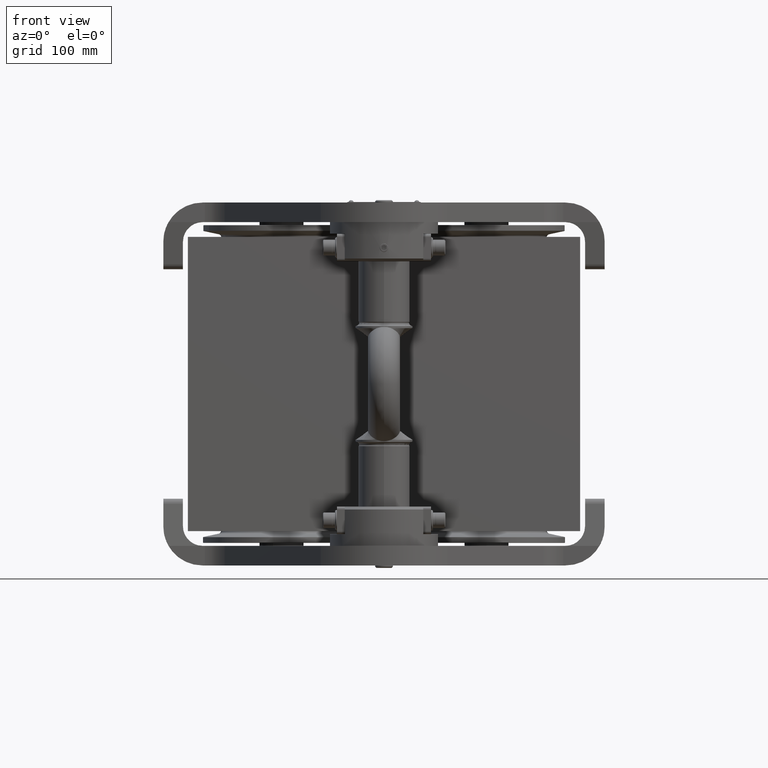
[diagram: clean part render]
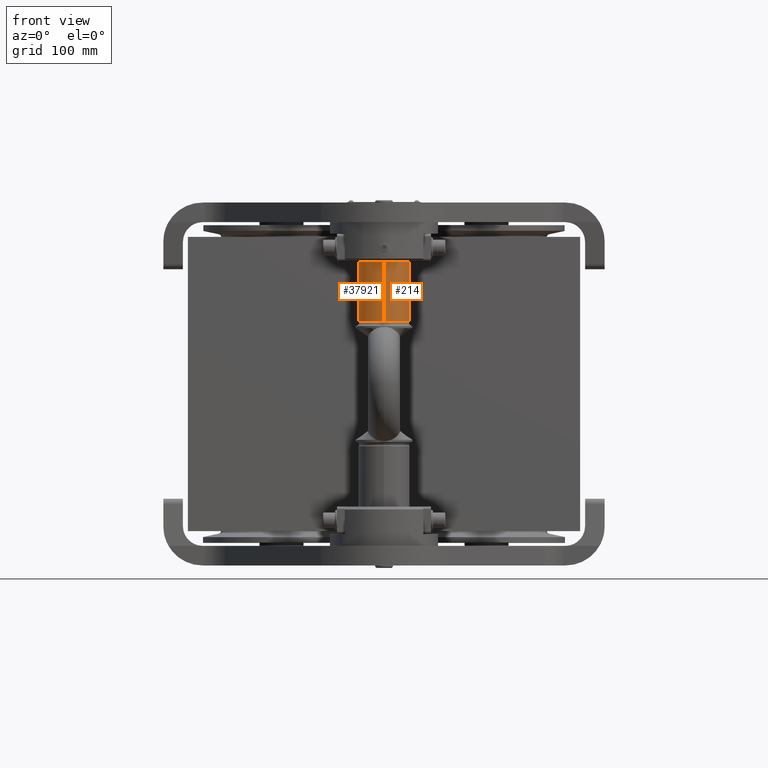
[diagram: same view with one multi-face feature highlighted, each face labeled with its STEP entity id]
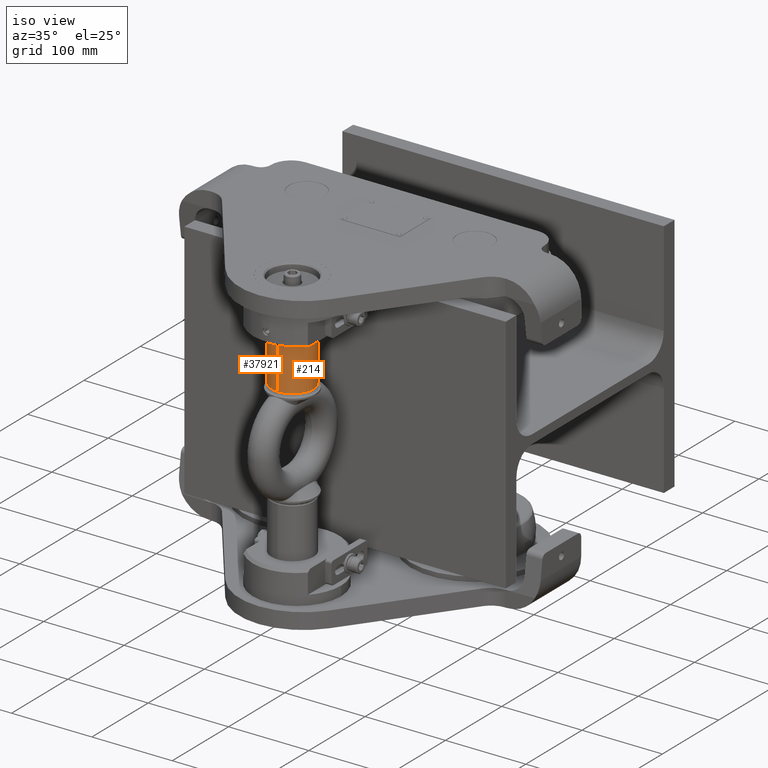
[diagram: same view with one multi-face feature highlighted, each face labeled with its STEP entity id]
A machine part, front view. The highlighted faces form ONE feature: a constant-radius fillet chain: 2 tangent blend faces with common blend radius 26 mm. The faces share edges in the B-rep.
A second angle (iso view) of the same feature is appended — it is thin or edge-on in the first view.
Their STEP definitions:
[1] entity #37921 (Cylinder):
#2736 = EDGE_CURVE ( 'NONE', #36435, #25343, #51163, .T. ) ;
#3084 = EDGE_LOOP ( 'NONE', ( #39491, #45904, #36110, #20164 ) ) ;
#3736 = CIRCLE ( 'NONE', #5734, 25.99999999999999600 ) ;
#4646 = DIRECTION ( 'NONE',  ( -4.160515420014120000E-018, 1.012011884991536300E-016, -1.000000000000000000 ) ) ;
#5734 = AXIS2_PLACEMENT_3D ( 'NONE', #48517, #20626, #44561 ) ;
#6882 = CARTESIAN_POINT ( 'NONE',  ( 3.566128585937725500E-017, -243.5000000000000000, 164.5000000000000000 ) ) ;
#10077 = FACE_OUTER_BOUND ( 'NONE', #3084, .T. ) ;
#15288 = CARTESIAN_POINT ( 'NONE',  ( 5.885120626645012600E-016, -217.5000000000000000, 164.5000000000000000 ) ) ;
#16116 = DIRECTION ( 'NONE',  ( -4.160515420014120000E-018, 1.012011884991536300E-016, -1.000000000000000000 ) ) ;
#17501 = CARTESIAN_POINT ( 'NONE',  ( -6.487435007329454900E-016, -243.4999999999999700, 2.430892778615527200E-017 ) ) ;
#18673 = CARTESIAN_POINT ( 'NONE',  ( 3.351824279652745100E-015, -217.5000000000000000, 63.36602540378402900 ) ) ;
#19482 = DIRECTION ( 'NONE',  ( -4.160515420014120000E-018, 1.012011884991536300E-016, -1.000000000000000000 ) ) ;
#19912 = CARTESIAN_POINT ( 'NONE',  ( 1.982487400245048300E-015, -269.4999999999999400, -2.606921973191838700E-015 ) ) ;
#20164 = ORIENTED_EDGE ( 'NONE', *, *, #44559, .F. ) ;
#20626 = DIRECTION ( 'NONE',  ( -4.160515420014120000E-018, 1.012011884991536300E-016, -1.000000000000000000 ) ) ;
#21130 = EDGE_CURVE ( 'NONE', #25343, #43425, #52751, .T. ) ;
#21573 = CARTESIAN_POINT ( 'NONE',  ( -9.589272392782158000E-017, -217.4999999999999700, 2.655539828764149400E-015 ) ) ;
#22380 = CARTESIAN_POINT ( 'NONE',  ( 2.456507456439937600E-015, -269.5000000000000000, 164.5000000000000000 ) ) ;
#23642 = DIRECTION ( 'NONE',  ( 2.126349141558169700E-017, 1.000000000000000000, 0.0000000000000000000 ) ) ;
#25343 = VERTEX_POINT ( 'NONE', #15288 ) ;
#26153 = DIRECTION ( 'NONE',  ( -4.160515420014120000E-018, 1.012011884991536300E-016, -1.000000000000000000 ) ) ;
#26916 = VERTEX_POINT ( 'NONE', #45422 ) ;
#28238 = LINE ( 'NONE', #19912, #39108 ) ;
#33740 = AXIS2_PLACEMENT_3D ( 'NONE', #17501, #26153, #50812 ) ;
#36110 = ORIENTED_EDGE ( 'NONE', *, *, #21130, .T. ) ;
#36435 = VERTEX_POINT ( 'NONE', #22380 ) ;
#36451 = CYLINDRICAL_SURFACE ( 'NONE', #33740, 25.99999999999999600 ) ;
#37921 = ADVANCED_FACE ( 'NONE', ( #10077 ), #36451, .T. ) ;
#39108 = VECTOR ( 'NONE', #16116, 1000.000000000000000 ) ;
#39491 = ORIENTED_EDGE ( 'NONE', *, *, #44615, .F. ) ;
#41799 = VECTOR ( 'NONE', #4646, 1000.000000000000000 ) ;
#43425 = VERTEX_POINT ( 'NONE', #18673 ) ;
#44559 = EDGE_CURVE ( 'NONE', #26916, #43425, #3736, .T. ) ;
#44561 = DIRECTION ( 'NONE',  ( 2.126349141558168200E-017, 1.000000000000000000, 0.0000000000000000000 ) ) ;
#44615 = EDGE_CURVE ( 'NONE', #36435, #26916, #28238, .T. ) ;
#45422 = CARTESIAN_POINT ( 'NONE',  ( -9.379589517406193700E-016, -269.4999999999999400, 63.36602540378402900 ) ) ;
#45904 = ORIENTED_EDGE ( 'NONE', *, *, #2736, .T. ) ;
#48517 = CARTESIAN_POINT ( 'NONE',  ( -3.851081749354955800E-016, -243.4999999999999700, 63.36602540378402900 ) ) ;
#50812 = DIRECTION ( 'NONE',  ( 2.126349141558169400E-017, 1.000000000000000000, 1.012011884991536300E-016 ) ) ;
#50846 = AXIS2_PLACEMENT_3D ( 'NONE', #6882, #19482, #23642 ) ;
#51163 = CIRCLE ( 'NONE', #50846, 25.99999999999999600 ) ;
#52751 = LINE ( 'NONE', #21573, #41799 ) ;
[2] entity #214 (Cylinder):
#204 = FACE_OUTER_BOUND ( 'NONE', #46170, .T. ) ;
#214 = ADVANCED_FACE ( 'NONE', ( #204 ), #14783, .T. ) ;
#700 = DIRECTION ( 'NONE',  ( 2.126349141558169400E-017, 1.000000000000000000, 1.012011884991536300E-016 ) ) ;
#1916 = ORIENTED_EDGE ( 'NONE', *, *, #3363, .T. ) ;
#3363 = EDGE_CURVE ( 'NONE', #25343, #36435, #39649, .T. ) ;
#4606 = DIRECTION ( 'NONE',  ( -4.160515420014120000E-018, 1.012011884991536300E-016, -1.000000000000000000 ) ) ;
#4646 = DIRECTION ( 'NONE',  ( -4.160515420014120000E-018, 1.012011884991536300E-016, -1.000000000000000000 ) ) ;
#6189 = AXIS2_PLACEMENT_3D ( 'NONE', #13564, #4606, #700 ) ;
#13564 = CARTESIAN_POINT ( 'NONE',  ( -6.487435007329454900E-016, -243.4999999999999700, 2.430892778615527200E-017 ) ) ;
#14783 = CYLINDRICAL_SURFACE ( 'NONE', #6189, 25.99999999999999600 ) ;
#15288 = CARTESIAN_POINT ( 'NONE',  ( 5.885120626645012600E-016, -217.5000000000000000, 164.5000000000000000 ) ) ;
#16116 = DIRECTION ( 'NONE',  ( -4.160515420014120000E-018, 1.012011884991536300E-016, -1.000000000000000000 ) ) ;
#16525 = AXIS2_PLACEMENT_3D ( 'NONE', #33901, #17623, #37682 ) ;
#17623 = DIRECTION ( 'NONE',  ( -4.160515420014120000E-018, 1.012011884991536300E-016, -1.000000000000000000 ) ) ;
#18673 = CARTESIAN_POINT ( 'NONE',  ( 3.351824279652745100E-015, -217.5000000000000000, 63.36602540378402900 ) ) ;
#19912 = CARTESIAN_POINT ( 'NONE',  ( 1.982487400245048300E-015, -269.4999999999999400, -2.606921973191838700E-015 ) ) ;
#20763 = DIRECTION ( 'NONE',  ( -4.160515420014120000E-018, 1.012011884991536300E-016, -1.000000000000000000 ) ) ;
#21130 = EDGE_CURVE ( 'NONE', #25343, #43425, #52751, .T. ) ;
#21573 = CARTESIAN_POINT ( 'NONE',  ( -9.589272392782158000E-017, -217.4999999999999700, 2.655539828764149400E-015 ) ) ;
#22380 = CARTESIAN_POINT ( 'NONE',  ( 2.456507456439937600E-015, -269.5000000000000000, 164.5000000000000000 ) ) ;
#25343 = VERTEX_POINT ( 'NONE', #15288 ) ;
#26916 = VERTEX_POINT ( 'NONE', #45422 ) ;
#28238 = LINE ( 'NONE', #19912, #39108 ) ;
#31178 = ORIENTED_EDGE ( 'NONE', *, *, #45080, .F. ) ;
#32922 = DIRECTION ( 'NONE',  ( 2.126349141558168200E-017, 1.000000000000000000, 0.0000000000000000000 ) ) ;
#33901 = CARTESIAN_POINT ( 'NONE',  ( 3.566128585937725500E-017, -243.5000000000000000, 164.5000000000000000 ) ) ;
#36435 = VERTEX_POINT ( 'NONE', #22380 ) ;
#37519 = ORIENTED_EDGE ( 'NONE', *, *, #44615, .T. ) ;
#37682 = DIRECTION ( 'NONE',  ( 2.126349141558169700E-017, 1.000000000000000000, 0.0000000000000000000 ) ) ;
#38244 = ORIENTED_EDGE ( 'NONE', *, *, #21130, .F. ) ;
#39108 = VECTOR ( 'NONE', #16116, 1000.000000000000000 ) ;
#39649 = CIRCLE ( 'NONE', #16525, 25.99999999999999600 ) ;
#41799 = VECTOR ( 'NONE', #4646, 1000.000000000000000 ) ;
#43425 = VERTEX_POINT ( 'NONE', #18673 ) ;
#44615 = EDGE_CURVE ( 'NONE', #36435, #26916, #28238, .T. ) ;
#45080 = EDGE_CURVE ( 'NONE', #43425, #26916, #49859, .T. ) ;
#45422 = CARTESIAN_POINT ( 'NONE',  ( -9.379589517406193700E-016, -269.4999999999999400, 63.36602540378402900 ) ) ;
#46170 = EDGE_LOOP ( 'NONE', ( #1916, #37519, #31178, #38244 ) ) ;
#48699 = AXIS2_PLACEMENT_3D ( 'NONE', #53158, #20763, #32922 ) ;
#49859 = CIRCLE ( 'NONE', #48699, 25.99999999999999600 ) ;
#52751 = LINE ( 'NONE', #21573, #41799 ) ;
#53158 = CARTESIAN_POINT ( 'NONE',  ( -3.851081749354955800E-016, -243.4999999999999700, 63.36602540378402900 ) ) ;